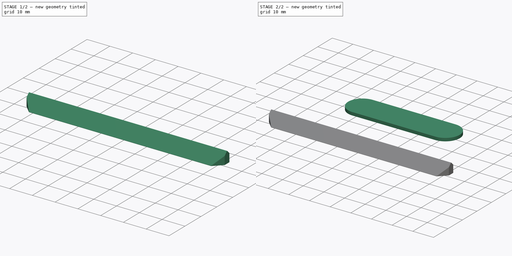
[diagram: build sequence overview — one tinted view per stage of 2, left to right]
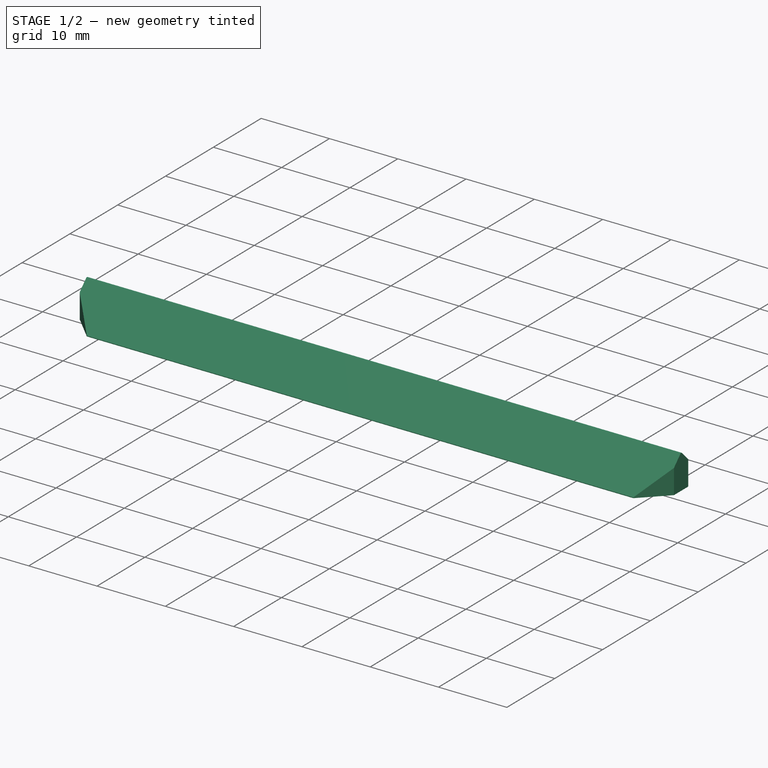
[diagram: stage 1 of 2 — iso view after this stage's code; geometry added in this stage tinted green]
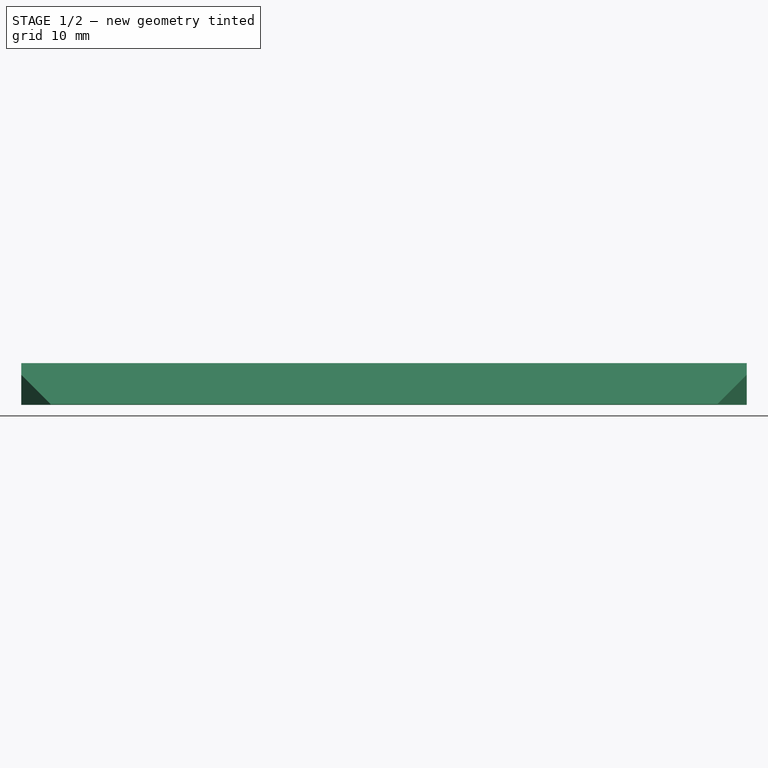
[diagram: stage 1 of 2 — front view after this stage's code; geometry added in this stage tinted green]
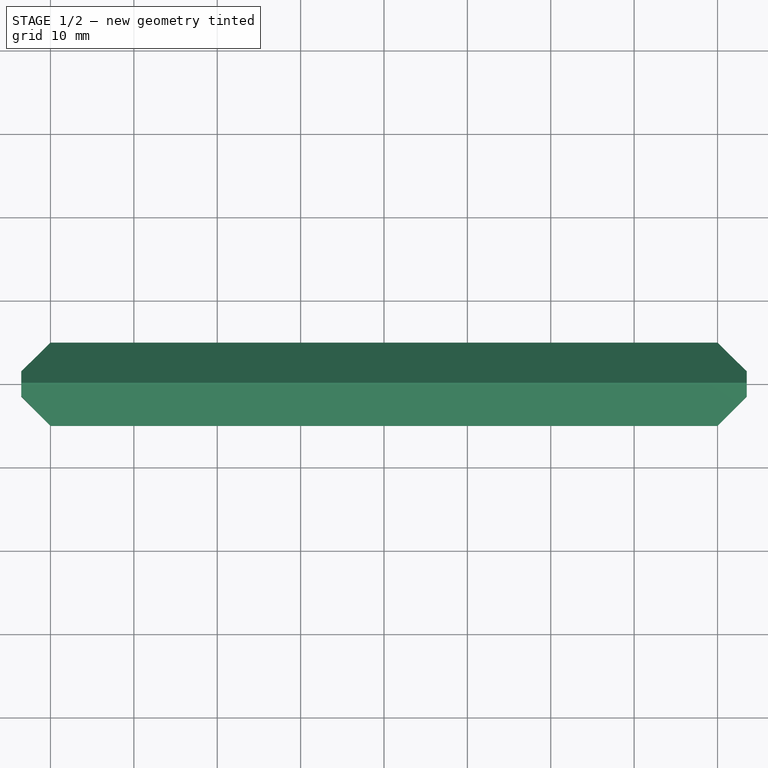
[diagram: stage 1 of 2 — top view after this stage's code; geometry added in this stage tinted green]
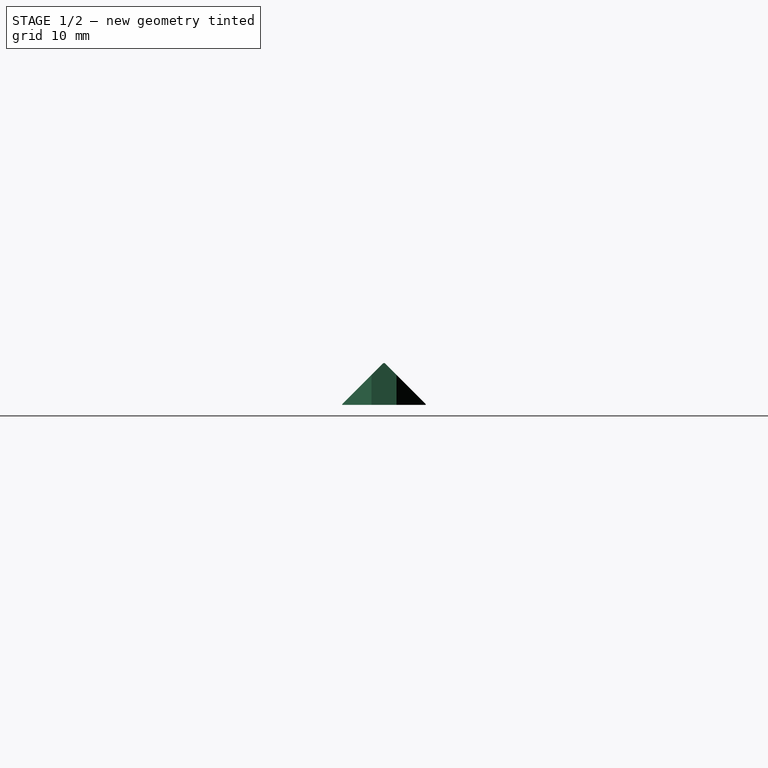
[diagram: stage 1 of 2 — right view after this stage's code; geometry added in this stage tinted green]
FCSTD DOCUMENT  (FreeCAD 0.16R6706 (Git))
Label: joints
License: All rights reserved
LicenseURL: http://en.wikipedia.org/wiki/All_rights_reserved
objects: Sketcher::SketchObject×2, PartDesign::Pad×2, PartDesign::Chamfer×1
note: 7 computed .brp shape members not serialized (recipe doc carries the construction recipe); baked Part::Feature solids carry a one-line shape summary decoded from their .brp

FEATURE [Sketcher::SketchObject] Sketch001
  sketch-geometry (12):
    g0: LineSegment StartX=-40 StartY=5 StartZ=0 EndX=40 EndY=5 EndZ=0
    g1: LineSegment [constr] StartX=40 StartY=5 StartZ=0 EndX=40 EndY=-5 EndZ=0
    g2: LineSegment StartX=40 StartY=-5 StartZ=0 EndX=-40 EndY=-5 EndZ=0
    g3: LineSegment [constr] StartX=-40 StartY=-5 StartZ=0 EndX=-40 EndY=5 EndZ=0
    g4: LineSegment [constr] StartX=-43.5 StartY=1.5 StartZ=0 EndX=43.5 EndY=1.5 EndZ=0
    g5: LineSegment StartX=43.5 StartY=1.5 StartZ=0 EndX=43.5 EndY=-1.5 EndZ=0
    g6: LineSegment [constr] StartX=43.5 StartY=-1.5 StartZ=0 EndX=-43.5 EndY=-1.5 EndZ=0
    g7: LineSegment StartX=-43.5 StartY=-1.5 StartZ=0 EndX=-43.5 EndY=1.5 EndZ=0
    g8: LineSegment StartX=40 StartY=5 StartZ=0 EndX=43.5 EndY=1.5 EndZ=0
    g9: LineSegment StartX=43.5 StartY=-1.5 StartZ=0 EndX=40 EndY=-5 EndZ=0
    g10: LineSegment StartX=-40 StartY=-5 StartZ=0 EndX=-43.5 EndY=-1.5 EndZ=0
    g11: LineSegment StartX=-43.5 StartY=1.5 StartZ=0 EndX=-40 EndY=5 EndZ=0
  constraints (32):
    c: Coincident(g0,g1)
    c: Coincident(g1,g2)
    c: Coincident(g2,g3)
    c: Coincident(g3,g0)
    c: Horizontal(g0)
    c: Horizontal(g2)
    c: Vertical(g1)
    c: Vertical(g3)
    c: Coincident(g4,g5)
    c: Coincident(g5,g6)
    c: Coincident(g6,g7)
    c: Coincident(g7,g4)
    c: Horizontal(g4)
    c: Horizontal(g6)
    c: Vertical(g5)
    c: Vertical(g7)
    c: Distance(g7) = 3
    c: Symmetric(g6,g5,g-2)
    c: Symmetric(g1,g2,g-2)
    c: Distance(g2) = 80
    c: DistanceX(g1,g5) = 3.5
    c: Symmetric(g2,g0,g-1)
    c: Symmetric(g6,g4,g-1)
    c: DistanceY(g1,g5) = 3.5
    c: Coincident(g8,g0)
    c: Coincident(g8,g4)
    c: Coincident(g9,g5)
    c: Coincident(g9,g1)
    c: Coincident(g10,g2)
    c: Coincident(g10,g6)
    c: Coincident(g11,g4)
    c: Coincident(g11,g0)
FEATURE [PartDesign::Pad] Pad001
  Length = 5
  Length2 = 100
  Sketch = -> Sketch001
  Type = 0
FEATURE [PartDesign::Chamfer] Chamfer
  Base = -> Pad001 [Edge4,Edge16]
  Size = 4.9
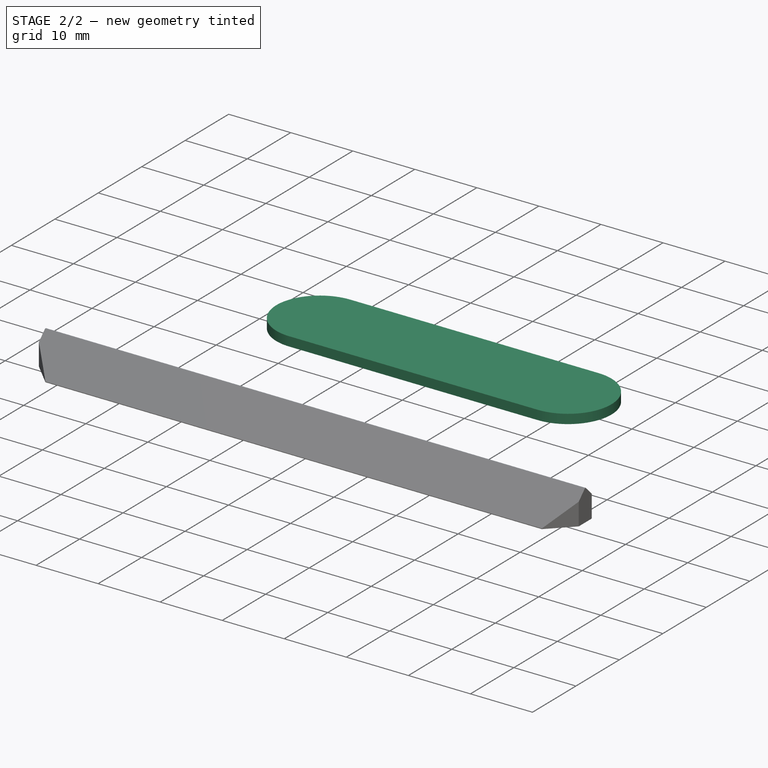
[diagram: stage 2 of 2 — iso view after this stage's code; geometry added in this stage tinted green]
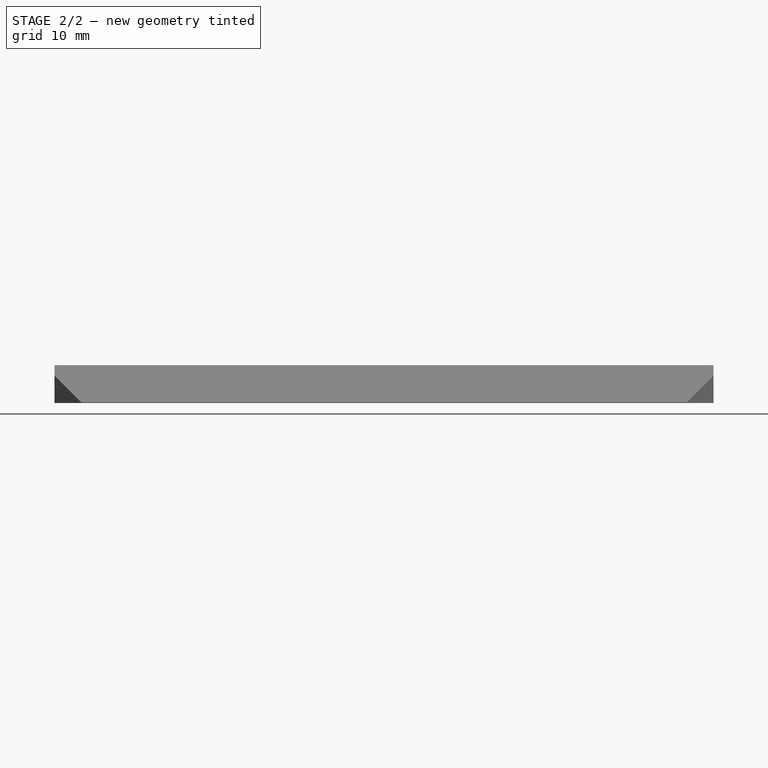
[diagram: stage 2 of 2 — front view after this stage's code; geometry added in this stage tinted green]
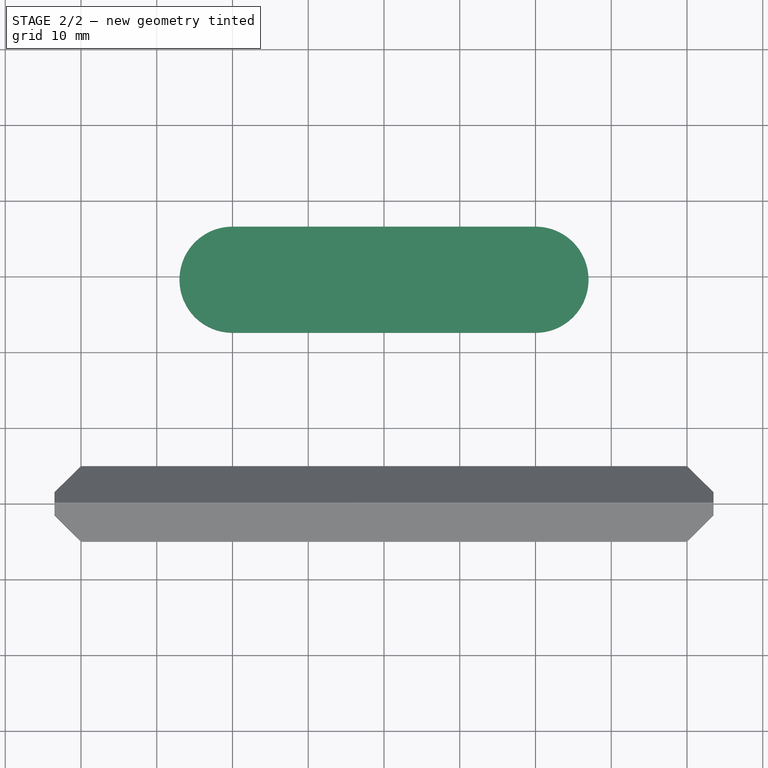
[diagram: stage 2 of 2 — top view after this stage's code; geometry added in this stage tinted green]
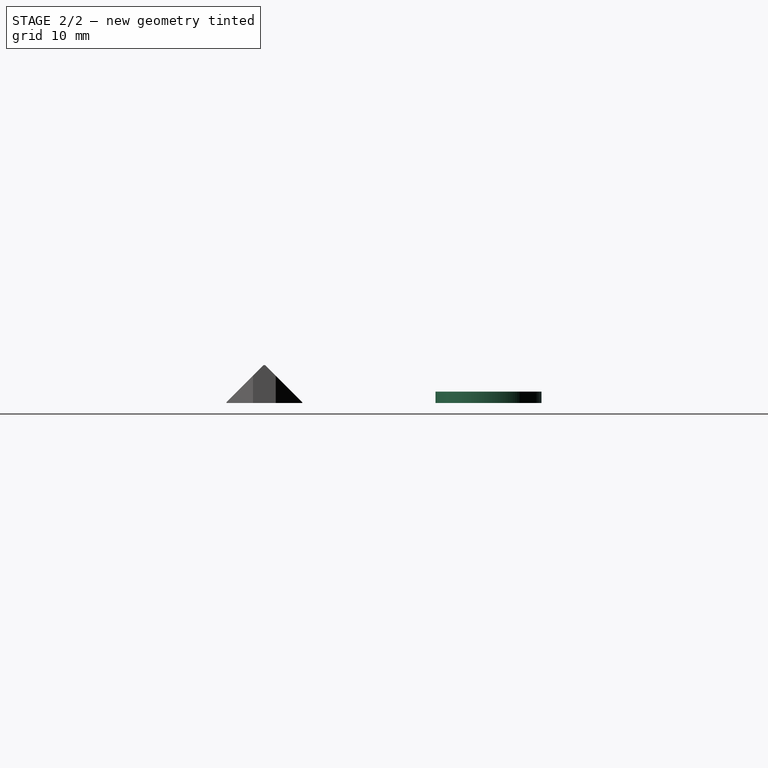
[diagram: stage 2 of 2 — right view after this stage's code; geometry added in this stage tinted green]
FEATURE [Sketcher::SketchObject] Sketch
  sketch-geometry (4):
    g0: ArcOfCircle CenterX=-20 CenterY=29.5921 CenterZ=0 NormalX=0 NormalY=0 NormalZ=1 Radius=7 StartAngle=1.5708 EndAngle=4.71239
    g1: ArcOfCircle CenterX=20 CenterY=29.5921 CenterZ=0 NormalX=0 NormalY=0 NormalZ=1 Radius=7 StartAngle=4.71239 EndAngle=7.85398
    g2: LineSegment StartX=-20 StartY=22.5921 StartZ=0 EndX=20 EndY=22.5921 EndZ=0
    g3: LineSegment StartX=-20 StartY=36.5921 StartZ=0 EndX=20 EndY=36.5921 EndZ=0
  constraints (9):
    c: Tangent(g0,g3) = 1.5708
    c: Tangent(g0,g2) = -1.5708
    c: Tangent(g2,g1) = -1.5708
    c: Tangent(g3,g1) = 1.5708
    c: Horizontal(g2)
    c: Equal(g0,g1)
    c: Symmetric(g0,g1,g-2)
    c: Radius(g1) = 7
    c: Distance(g2) = 40
FEATURE [PartDesign::Pad] Pad
  Length = 1.5
  Length2 = 100
  Sketch = -> Sketch
  Type = 0
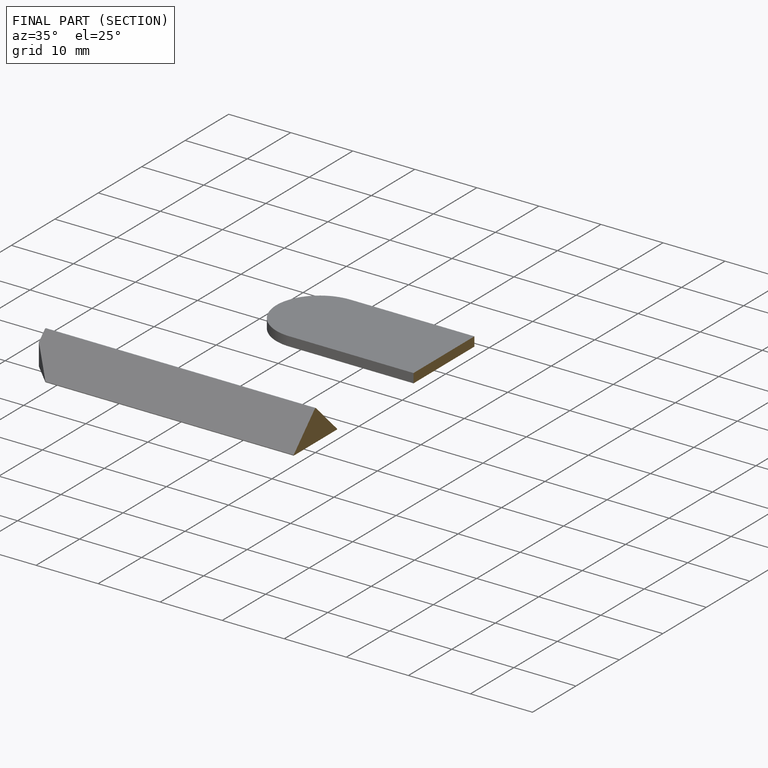
[diagram: finished part — half-section view (interior)]
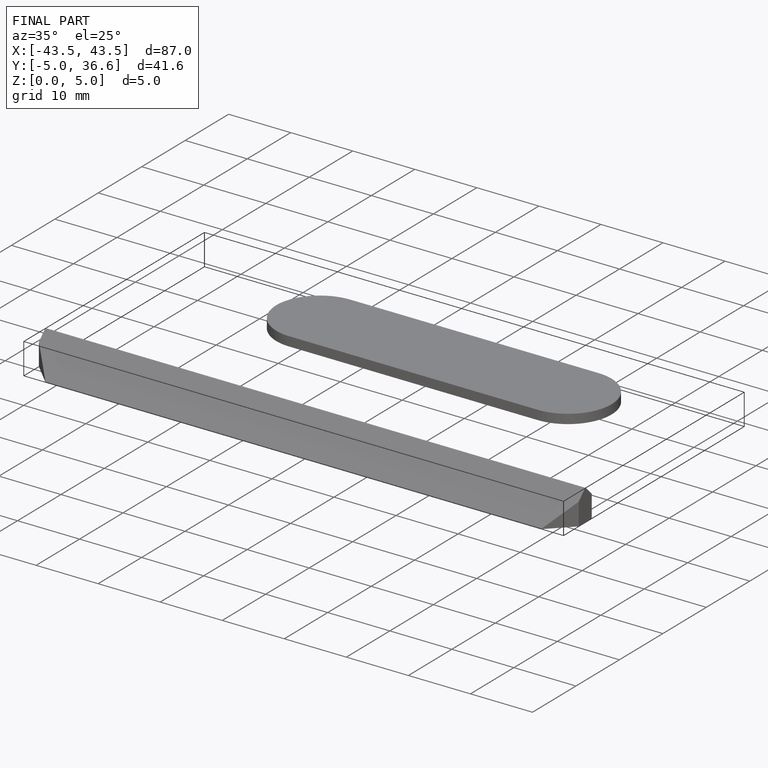
[diagram: finished part — iso view with bounding-box wireframe]
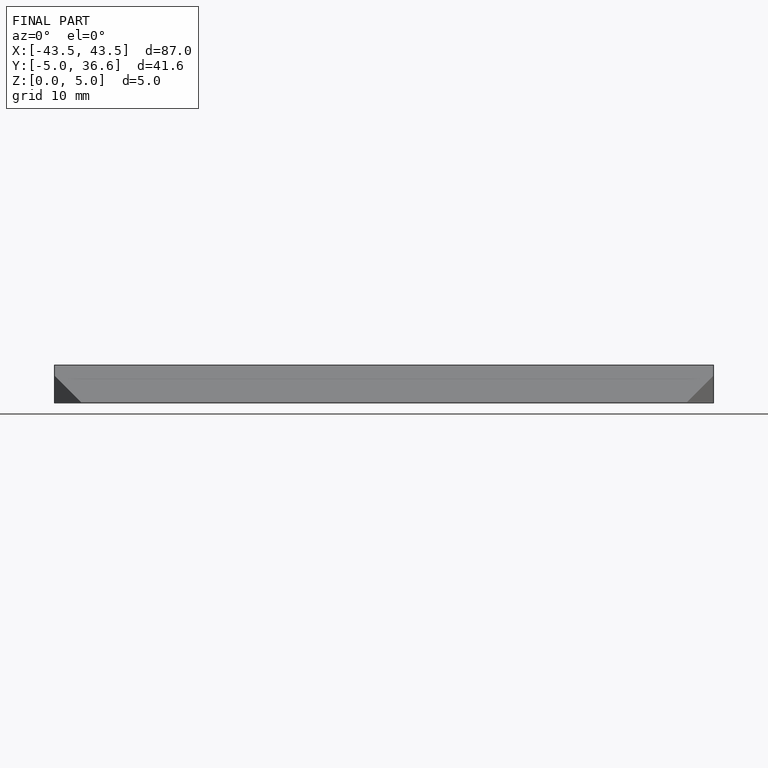
[diagram: finished part — front view with bounding-box wireframe]
